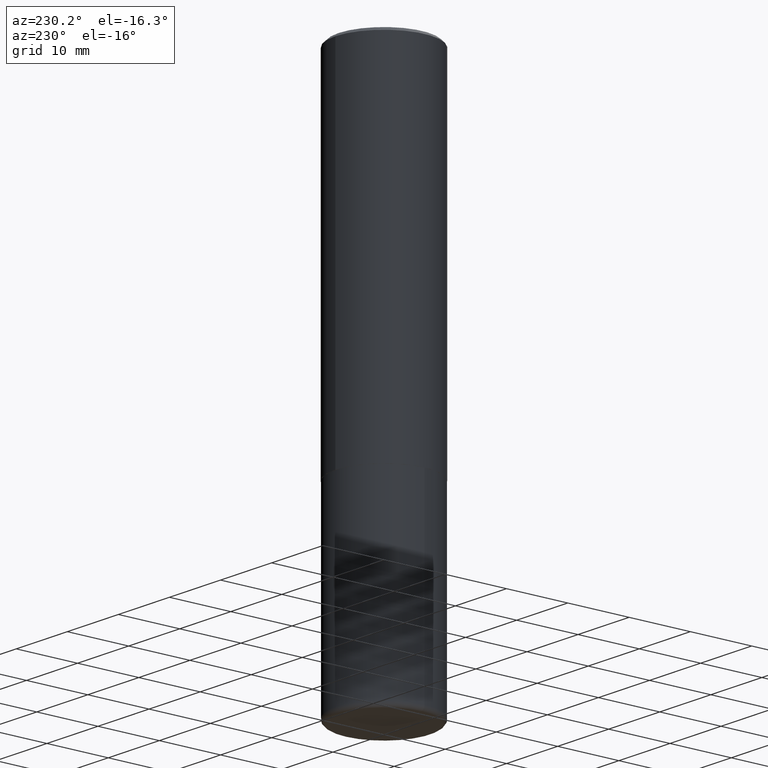
[diagram: clean part render]
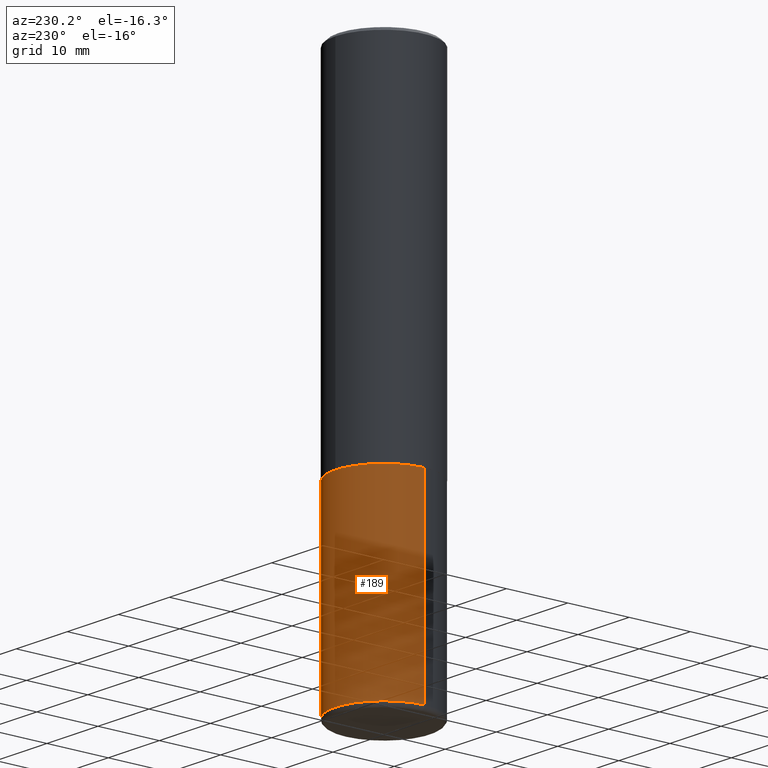
[diagram: same view with one face highlighted and labeled with its STEP entity id]
A machine part, auxiliary view. The second image highlights one B-rep face of the part: STEP entity #189.
In plain terms, the highlighted cylindrical surface (partial cylindrical patch) has radius 7.9375 mm, axis along (-0, 0, 1).
Its self-contained STEP definition (entity closure, byte-faithful):
#10 = CARTESIAN_POINT ( 'NONE',  ( 0.3125000000000000000, -1.003800884917403364E-14, -2.249999999999999556 ) ) ;
#18 = DIRECTION ( 'NONE',  ( -2.445468806185136877E-29, 3.491481338843145188E-15, 1.000000000000000000 ) ) ;
#20 = CIRCLE ( 'NONE', #206, 0.3124999999999999445 ) ;
#40 = LINE ( 'NONE', #371, #242 ) ;
#42 = ORIENTED_EDGE ( 'NONE', *, *, #144, .T. ) ;
#50 = ORIENTED_EDGE ( 'NONE', *, *, #98, .T. ) ;
#57 = CARTESIAN_POINT ( 'NONE',  ( 5.502304813916556222E-29, -7.855833012397075293E-15, -2.249999999999999556 ) ) ;
#74 = VECTOR ( 'NONE', #18, 39.37007874015748143 ) ;
#85 = DIRECTION ( 'NONE',  ( -2.445468806185136877E-29, 3.491481338843145188E-15, 1.000000000000000000 ) ) ;
#98 = EDGE_CURVE ( 'NONE', #410, #119, #20, .T. ) ;
#116 = AXIS2_PLACEMENT_3D ( 'NONE', #57, #124, #183 ) ;
#118 = CARTESIAN_POINT ( 'NONE',  ( 0.3125000000000000000, -2.182175836776958347E-15, 1.523805242436230075E-29 ) ) ;
#119 = VERTEX_POINT ( 'NONE', #229 ) ;
#124 = DIRECTION ( 'NONE',  ( -2.445468806185136597E-29, 3.491481338843145583E-15, 1.000000000000000000 ) ) ;
#125 = LINE ( 'NONE', #118, #74 ) ;
#144 = EDGE_CURVE ( 'NONE', #119, #274, #40, .T. ) ;
#153 = EDGE_LOOP ( 'NONE', ( #50, #42, #291, #207 ) ) ;
#155 = DIRECTION ( 'NONE',  ( -2.445468806185136597E-29, 3.491481338843145583E-15, 1.000000000000000000 ) ) ;
#166 = CIRCLE ( 'NONE', #116, 0.3125000000000000000 ) ;
#180 = CYLINDRICAL_SURFACE ( 'NONE', #372, 0.3125000000000000000 ) ;
#183 = DIRECTION ( 'NONE',  ( 1.000000000000000000, -6.982962677686265133E-15, 0.000000000000000000 ) ) ;
#186 = CARTESIAN_POINT ( 'NONE',  ( -0.3125000000000000000, -7.765190579841083341E-15, -2.249999999999999556 ) ) ;
#189 = ADVANCED_FACE ( 'NONE', ( #245 ), #180, .T. ) ;
#206 = AXIS2_PLACEMENT_3D ( 'NONE', #365, #385, #324 ) ;
#207 = ORIENTED_EDGE ( 'NONE', *, *, #418, .F. ) ;
#216 = EDGE_CURVE ( 'NONE', #341, #274, #166, .T. ) ;
#218 = CARTESIAN_POINT ( 'NONE',  ( 0.000000000000000000, 0.000000000000000000, 0.000000000000000000 ) ) ;
#229 = CARTESIAN_POINT ( 'NONE',  ( -0.3125000000000000555, -9.894994196535401314E-15, -3.469999999999999751 ) ) ;
#242 = VECTOR ( 'NONE', #85, 39.37007874015748143 ) ;
#245 = FACE_OUTER_BOUND ( 'NONE', #153, .T. ) ;
#274 = VERTEX_POINT ( 'NONE', #186 ) ;
#277 = DIRECTION ( 'NONE',  ( 1.000000000000000000, -6.982962677686266711E-15, 4.876176775795936353E-29 ) ) ;
#291 = ORIENTED_EDGE ( 'NONE', *, *, #216, .F. ) ;
#324 = DIRECTION ( 'NONE',  ( 1.000000000000000000, -6.982962677686264344E-15, 0.000000000000000000 ) ) ;
#341 = VERTEX_POINT ( 'NONE', #10 ) ;
#365 = CARTESIAN_POINT ( 'NONE',  ( 8.485776757462424574E-29, -1.211544024578571439E-14, -3.469999999999999751 ) ) ;
#371 = CARTESIAN_POINT ( 'NONE',  ( -0.3125000000000000000, 2.220446049250313081E-15, -1.537167215704658232E-29 ) ) ;
#372 = AXIS2_PLACEMENT_3D ( 'NONE', #218, #155, #277 ) ;
#385 = DIRECTION ( 'NONE',  ( -2.445468806185136597E-29, 3.491481338843145583E-15, 1.000000000000000000 ) ) ;
#409 = CARTESIAN_POINT ( 'NONE',  ( 0.3125000000000000555, -1.429761608256267432E-14, -3.469999999999999751 ) ) ;
#410 = VERTEX_POINT ( 'NONE', #409 ) ;
#418 = EDGE_CURVE ( 'NONE', #410, #341, #125, .T. ) ;